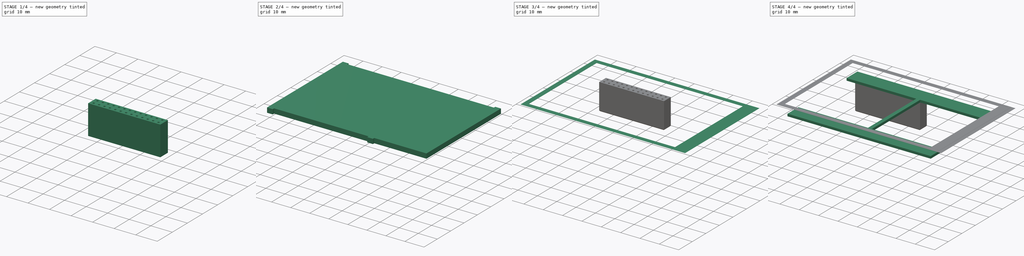
[diagram: build sequence overview — one tinted view per stage of 4, left to right]
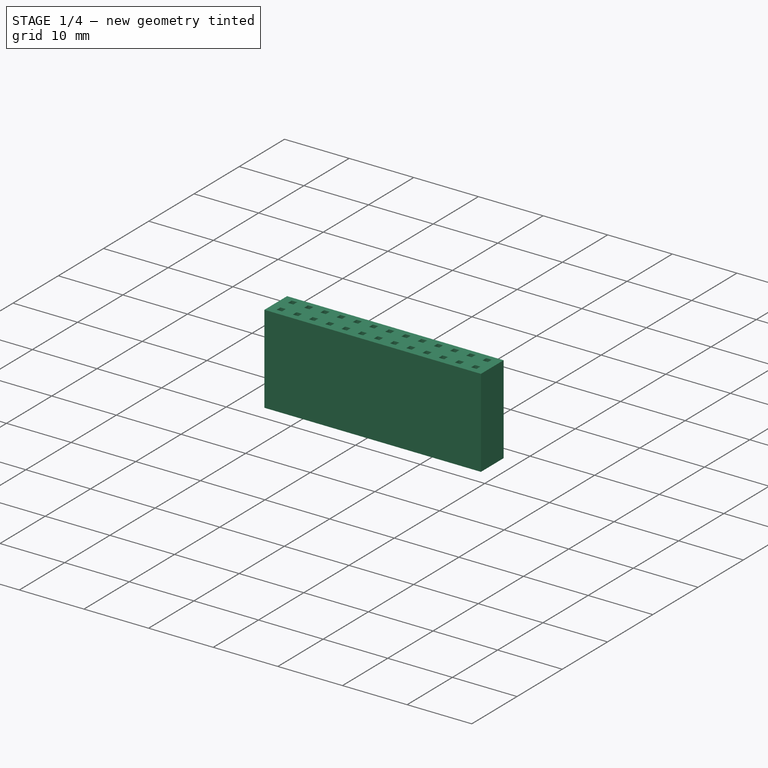
[diagram: stage 1 of 4 — iso view after this stage's code; geometry added in this stage tinted green]
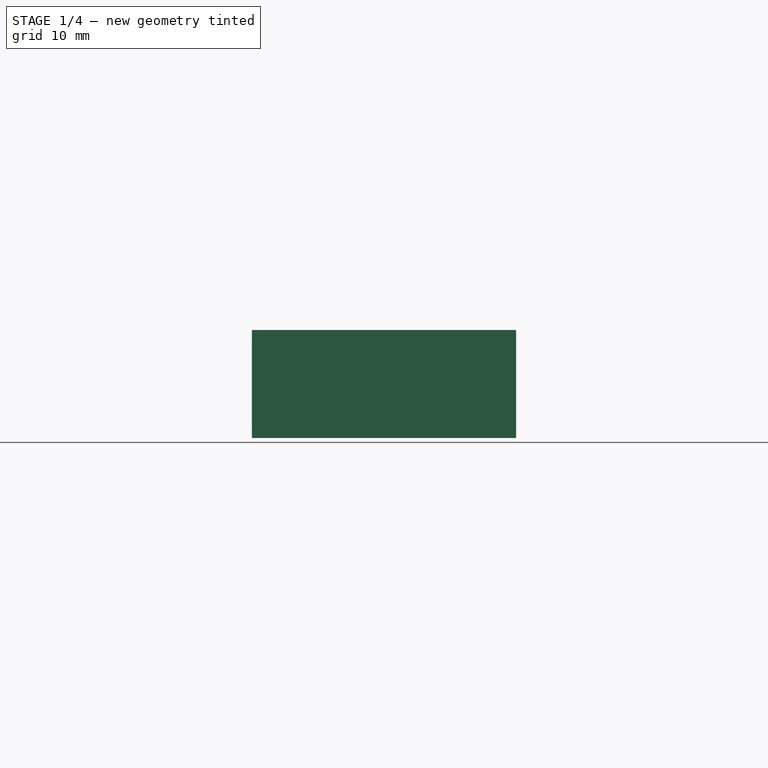
[diagram: stage 1 of 4 — front view after this stage's code; geometry added in this stage tinted green]
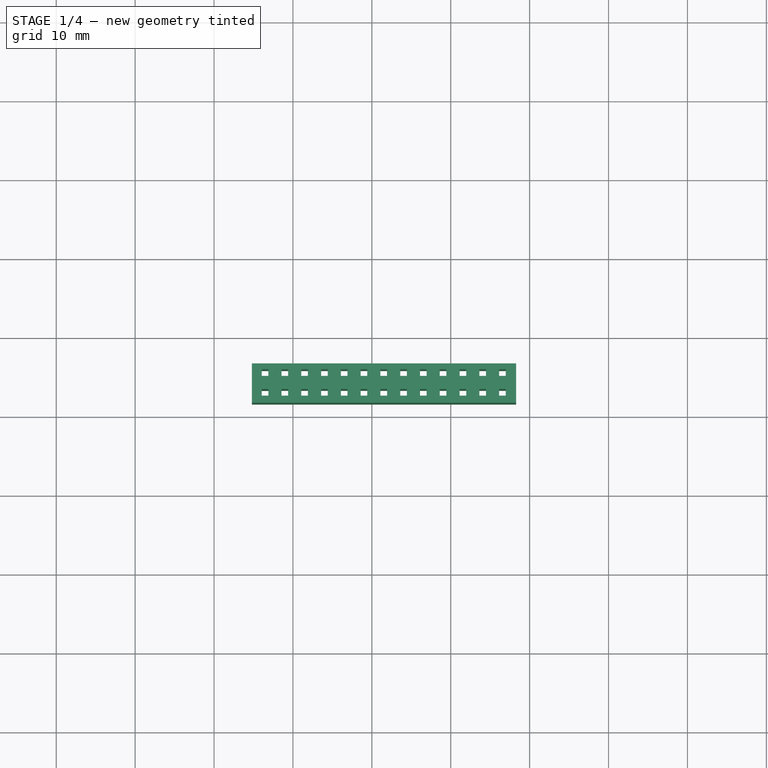
[diagram: stage 1 of 4 — top view after this stage's code; geometry added in this stage tinted green]
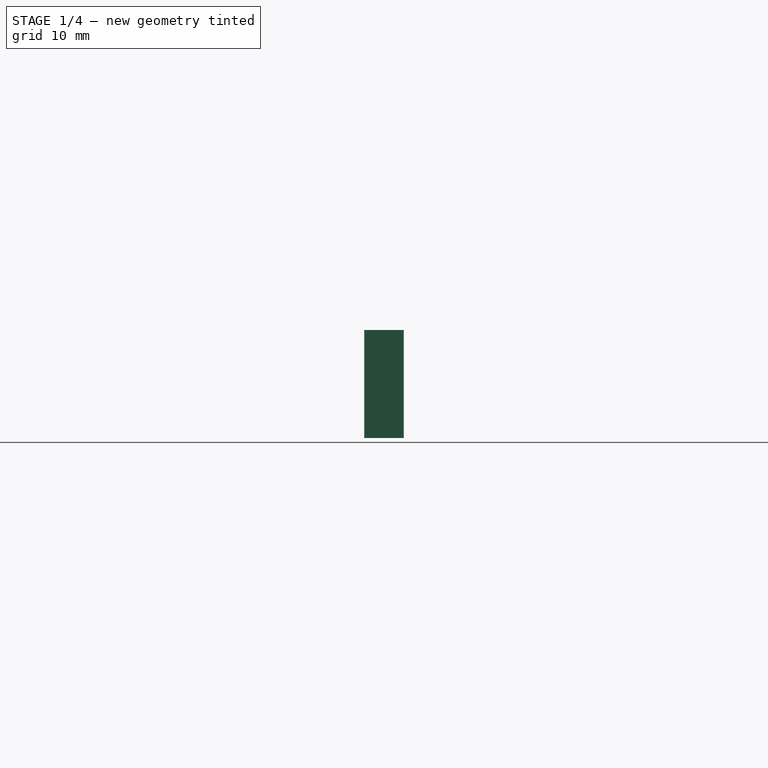
[diagram: stage 1 of 4 — right view after this stage's code; geometry added in this stage tinted green]
FCSTD DOCUMENT  (FreeCAD 0.20R26554 (Git))
Label: 3.5_RPi_tft_display_spi_480x320
Comment: Don´t forget to share your modifications with the community.
License: Creative Commons Attribution
LicenseURL: http://creativecommons.org/licenses/by/4.0/
objects: Sketcher::SketchObject×8, PartDesign::Pad×7, PartDesign::Body×7, PartDesign::ShapeBinder×6, PartDesign::Plane×1, PartDesign::Pocket×1, PartDesign::Chamfer×1
note: 40 computed .brp shape members not serialized (recipe doc carries the construction recipe); baked Part::Feature solids carry a one-line shape summary decoded from their .brp

FEATURE [Sketcher::SketchObject] Sketch
  FullyConstrained = true
  MapMode = 5
  Support = -> [XY_Plane]
  sketch-geometry (5):
    g0: LineSegment StartX=-42.71 StartY=27.8 StartZ=0 EndX=-42.71 EndY=-27.8 EndZ=0
    g1: LineSegment StartX=-42.71 StartY=-27.8 StartZ=0 EndX=42.71 EndY=-27.8 EndZ=0
    g2: LineSegment StartX=42.71 StartY=-27.8 StartZ=0 EndX=42.71 EndY=27.8 EndZ=0
    g3: LineSegment StartX=42.71 StartY=27.8 StartZ=0 EndX=-42.71 EndY=27.8 EndZ=0
    g4: GeomPoint X=0 Y=0 Z=0
  constraints (12):
    c: Coincident(g0,g1)
    c: Coincident(g1,g2)
    c: Coincident(g2,g3)
    c: Coincident(g3,g0)
    c: Horizontal(g1)
    c: Horizontal(g3)
    c: Vertical(g0)
    c: Vertical(g2)
    c: Symmetric(g1,g0,g4)
    c: Coincident(g4,g-1)
    c: DistanceX(g3,g3) = 85.42
    c: DistanceY(g2,g2) = 55.6
FEATURE [PartDesign::Pad] Pad
  Direction = (0,0,1)
  Length = 1.6
  Length2 = 100
  Profile = -> Sketch
  ReferenceAxis = -> Sketch [N_Axis]
  Type = 0
FEATURE [PartDesign::Body] Body005  label="BlackLayer"
  Group = -> [ShapeBinder003,Sketch006,Pad005]
  Origin = -> Origin005
  Tip = -> Pad005
FEATURE [PartDesign::ShapeBinder] ShapeBinder004
  Support = -> [Pad]
  TraceSupport = false
FEATURE [Sketcher::SketchObject] Sketch007
  ExternalGeometry = -> [ShapeBinder004]
  FullyConstrained = true
  MapMode = 5
  Placement = pos=(0,0,0) rot=(1,0,0;3.14159rad)
  Support = -> [ShapeBinder004]
  sketch-geometry (133):
    g0: LineSegment StartX=-35.21 StartY=-21.6 StartZ=0 EndX=-1.71 EndY=-21.6 EndZ=0
    g1: LineSegment StartX=-1.71 StartY=-21.6 StartZ=0 EndX=-1.71 EndY=-26.6 EndZ=0
    g2: LineSegment StartX=-1.71 StartY=-26.6 StartZ=0 EndX=-35.21 EndY=-26.6 EndZ=0
    g3: LineSegment StartX=-35.21 StartY=-26.6 StartZ=0 EndX=-35.21 EndY=-21.6 EndZ=0
    g4: LineSegment StartX=-33.96 StartY=-22.5 StartZ=0 EndX=-33.12 EndY=-22.5 EndZ=0
    g5: LineSegment StartX=-33.12 StartY=-22.5 StartZ=0 EndX=-33.12 EndY=-23.34 EndZ=0
    g6: LineSegment StartX=-33.12 StartY=-23.34 StartZ=0 EndX=-33.96 EndY=-23.34 EndZ=0
    g7: LineSegment StartX=-33.96 StartY=-23.34 StartZ=0 EndX=-33.96 EndY=-22.5 EndZ=0
    g8: LineSegment StartX=-31.4519 StartY=-22.5003 StartZ=0 EndX=-30.6119 EndY=-22.5003 EndZ=0
    g9: LineSegment StartX=-30.6119 StartY=-22.5003 StartZ=0 EndX=-30.6119 EndY=-23.3403 EndZ=0
    g10: LineSegment StartX=-30.6119 StartY=-23.3403 StartZ=0 EndX=-31.4519 EndY=-23.3403 EndZ=0
    g11: LineSegment StartX=-31.4519 StartY=-23.3403 StartZ=0 EndX=-31.4519 EndY=-22.5003 EndZ=0
    g12: LineSegment StartX=-33.96 StartY=-22.5 StartZ=0 EndX=-31.4519 EndY=-22.5003 EndZ=0
    g13: LineSegment StartX=-28.9439 StartY=-22.5006 StartZ=0 EndX=-28.1039 EndY=-22.5006 EndZ=0
    g14: LineSegment StartX=-28.1039 StartY=-22.5006 StartZ=0 EndX=-28.1039 EndY=-23.3406 EndZ=0
    g15: LineSegment StartX=-28.1039 StartY=-23.3406 StartZ=0 EndX=-28.9439 EndY=-23.3406 EndZ=0
    g16: LineSegment StartX=-28.9439 StartY=-23.3406 StartZ=0 EndX=-28.9439 EndY=-22.5006 EndZ=0
    g17: LineSegment StartX=-31.4519 StartY=-22.5003 StartZ=0 EndX=-28.9439 EndY=-22.5006 EndZ=0
    g18: LineSegment StartX=-26.4358 StartY=-22.501 StartZ=0 EndX=-25.5958 EndY=-22.501 EndZ=0
    g19: LineSegment StartX=-25.5958 StartY=-22.501 StartZ=0 EndX=-25.5958 EndY=-23.341 EndZ=0
    g20: LineSegment StartX=-25.5958 StartY=-23.341 StartZ=0 EndX=-26.4358 EndY=-23.341 EndZ=0
    g21: LineSegment StartX=-26.4358 StartY=-23.341 StartZ=0 EndX=-26.4358 EndY=-22.501 EndZ=0
    g22: LineSegment StartX=-28.9439 StartY=-22.5006 StartZ=0 EndX=-26.4358 EndY=-22.501 EndZ=0
    g23: LineSegment StartX=-23.9277 StartY=-22.5013 StartZ=0 EndX=-23.0877 EndY=-22.5013 EndZ=0
    g24: LineSegment StartX=-23.0877 StartY=-22.5013 StartZ=0 EndX=-23.0877 EndY=-23.3413 EndZ=0
    g25: LineSegment StartX=-23.0877 StartY=-23.3413 StartZ=0 EndX=-23.9277 EndY=-23.3413 EndZ=0
    g26: LineSegment StartX=-23.9277 StartY=-23.3413 StartZ=0 EndX=-23.9277 EndY=-22.5013 EndZ=0
    g27: LineSegment StartX=-26.4358 StartY=-22.501 StartZ=0 EndX=-23.9277 EndY=-22.5013 EndZ=0
    g28: LineSegment StartX=-21.4197 StartY=-22.5016 StartZ=0 EndX=-20.5797 EndY=-22.5016 EndZ=0
    g29: LineSegment StartX=-20.5797 StartY=-22.5016 StartZ=0 EndX=-20.5797 EndY=-23.3416 EndZ=0
    g30: LineSegment StartX=-20.5797 StartY=-23.3416 StartZ=0 EndX=-21.4197 EndY=-23.3416 EndZ=0
    g31: LineSegment StartX=-21.4197 StartY=-23.3416 StartZ=0 EndX=-21.4197 EndY=-22.5016 EndZ=0
    g32: LineSegment StartX=-23.9277 StartY=-22.5013 StartZ=0 EndX=-21.4197 EndY=-22.5016 EndZ=0
    g33: LineSegment StartX=-18.9116 StartY=-22.5019 StartZ=0 EndX=-18.0716 EndY=-22.5019 EndZ=0
    g34: LineSegment StartX=-18.0716 StartY=-22.5019 StartZ=0 EndX=-18.0716 EndY=-23.3419 EndZ=0
    g35: LineSegment StartX=-18.0716 StartY=-23.3419 StartZ=0 EndX=-18.9116 EndY=-23.3419 EndZ=0
    g36: LineSegment StartX=-18.9116 StartY=-23.3419 StartZ=0 EndX=-18.9116 EndY=-22.5019 EndZ=0
    g37: LineSegment StartX=-21.4197 StartY=-22.5016 StartZ=0 EndX=-18.9116 EndY=-22.5019 EndZ=0
    g38: LineSegment StartX=-16.4035 StartY=-22.5022 StartZ=0 EndX=-15.5635 EndY=-22.5022 EndZ=0
    g39: LineSegment StartX=-15.5635 StartY=-22.5022 StartZ=0 EndX=-15.5635 EndY=-23.3422 EndZ=0
    g40: LineSegment StartX=-15.5635 StartY=-23.3422 StartZ=0 EndX=-16.4035 EndY=-23.3422 EndZ=0
    g41: LineSegment StartX=-16.4035 StartY=-23.3422 StartZ=0 EndX=-16.4035 EndY=-22.5022 EndZ=0
    g42: LineSegment StartX=-18.9116 StartY=-22.5019 StartZ=0 EndX=-16.4035 EndY=-22.5022 EndZ=0
    g43: LineSegment StartX=-13.8955 StartY=-22.5026 StartZ=0 EndX=-13.0555 EndY=-22.5026 EndZ=0
    g44: LineSegment StartX=-13.0555 StartY=-22.5026 StartZ=0 EndX=-13.0555 EndY=-23.3426 EndZ=0
    g45: LineSegment StartX=-13.0555 StartY=-23.3426 StartZ=0 EndX=-13.8955 EndY=-23.3426 EndZ=0
    g46: LineSegment StartX=-13.8955 StartY=-23.3426 StartZ=0 EndX=-13.8955 EndY=-22.5026 EndZ=0
    g47: LineSegment StartX=-16.4035 StartY=-22.5022 StartZ=0 EndX=-13.8955 EndY=-22.5026 EndZ=0
    g48: LineSegment StartX=-11.3874 StartY=-22.5029 StartZ=0 EndX=-10.5474 EndY=-22.5029 EndZ=0
    g49: LineSegment StartX=-10.5474 StartY=-22.5029 StartZ=0 EndX=-10.5474 EndY=-23.3429 EndZ=0
    g50: LineSegment StartX=-10.5474 StartY=-23.3429 StartZ=0 EndX=-11.3874 EndY=-23.3429 EndZ=0
    g51: LineSegment StartX=-11.3874 StartY=-23.3429 StartZ=0 EndX=-11.3874 EndY=-22.5029 EndZ=0
    g52: LineSegment StartX=-13.8955 StartY=-22.5026 StartZ=0 EndX=-11.3874 EndY=-22.5029 EndZ=0
    g53: LineSegment StartX=-8.87935 StartY=-22.5032 StartZ=0 EndX=-8.03935 EndY=-22.5032 EndZ=0
    g54: LineSegment StartX=-8.03935 StartY=-22.5032 StartZ=0 EndX=-8.03935 EndY=-23.3432 EndZ=0
    g55: LineSegment StartX=-8.03935 StartY=-23.3432 StartZ=0 EndX=-8.87935 EndY=-23.3432 EndZ=0
    g56: LineSegment StartX=-8.87935 StartY=-23.3432 StartZ=0 EndX=-8.87935 EndY=-22.5032 EndZ=0
    g57: LineSegment StartX=-11.3874 StartY=-22.5029 StartZ=0 EndX=-8.87935 EndY=-22.5032 EndZ=0
    g58: LineSegment StartX=-6.37128 StartY=-22.5035 StartZ=0 EndX=-5.53128 EndY=-22.5035 EndZ=0
    g59: LineSegment StartX=-5.53128 StartY=-22.5035 StartZ=0 EndX=-5.53128 EndY=-23.3435 EndZ=0
    g60: LineSegment StartX=-5.53128 StartY=-23.3435 StartZ=0 EndX=-6.37128 EndY=-23.3435 EndZ=0
    g61: LineSegment StartX=-6.37128 StartY=-23.3435 StartZ=0 EndX=-6.37128 EndY=-22.5035 EndZ=0
    g62: LineSegment StartX=-8.87935 StartY=-22.5032 StartZ=0 EndX=-6.37128 EndY=-22.5035 EndZ=0
    g63: LineSegment StartX=-3.86322 StartY=-22.5038 StartZ=0 EndX=-3.02322 EndY=-22.5038 EndZ=0
    g64: LineSegment StartX=-3.02322 StartY=-22.5038 StartZ=0 EndX=-3.02322 EndY=-23.3438 EndZ=0
    g65: LineSegment StartX=-3.02322 StartY=-23.3438 StartZ=0 EndX=-3.86322 EndY=-23.3438 EndZ=0
    g66: LineSegment StartX=-3.86322 StartY=-23.3438 StartZ=0 EndX=-3.86322 EndY=-22.5038 EndZ=0
    g67: LineSegment StartX=-6.37128 StartY=-22.5035 StartZ=0 EndX=-3.86322 EndY=-22.5038 EndZ=0
    g68: LineSegment StartX=-33.9603 StartY=-25.0081 StartZ=0 EndX=-33.1203 EndY=-25.0081 EndZ=0
    g69: LineSegment StartX=-33.1203 StartY=-25.0081 StartZ=0 EndX=-33.1203 EndY=-25.8481 EndZ=0
    g70: LineSegment StartX=-33.1203 StartY=-25.8481 StartZ=0 EndX=-33.9603 EndY=-25.8481 EndZ=0
    g71: LineSegment StartX=-33.9603 StartY=-25.8481 StartZ=0 EndX=-33.9603 EndY=-25.0081 EndZ=0
    g72: LineSegment StartX=-33.96 StartY=-22.5 StartZ=0 EndX=-33.9603 EndY=-25.0081 EndZ=0
    g73: LineSegment StartX=-31.4523 StartY=-25.0084 StartZ=0 EndX=-30.6123 EndY=-25.0084 EndZ=0
    g74: LineSegment StartX=-30.6123 StartY=-25.0084 StartZ=0 EndX=-30.6123 EndY=-25.8484 EndZ=0
    g75: LineSegment StartX=-30.6123 StartY=-25.8484 StartZ=0 EndX=-31.4523 EndY=-25.8484 EndZ=0
    g76: LineSegment StartX=-31.4523 StartY=-25.8484 StartZ=0 EndX=-31.4523 EndY=-25.0084 EndZ=0
    g77: LineSegment StartX=-33.9603 StartY=-25.0081 StartZ=0 EndX=-31.4523 EndY=-25.0084 EndZ=0
    g78: LineSegment StartX=-28.9442 StartY=-25.0087 StartZ=0 EndX=-28.1042 EndY=-25.0087 EndZ=0
    g79: LineSegment StartX=-28.1042 StartY=-25.0087 StartZ=0 EndX=-28.1042 EndY=-25.8487 EndZ=0
    g80: LineSegment StartX=-28.1042 StartY=-25.8487 StartZ=0 EndX=-28.9442 EndY=-25.8487 EndZ=0
    g81: LineSegment StartX=-28.9442 StartY=-25.8487 StartZ=0 EndX=-28.9442 EndY=-25.0087 EndZ=0
    g82: LineSegment StartX=-31.4523 StartY=-25.0084 StartZ=0 EndX=-28.9442 EndY=-25.0087 EndZ=0
    g83: LineSegment StartX=-26.4361 StartY=-25.009 StartZ=0 EndX=-25.5961 EndY=-25.009 EndZ=0
    g84: LineSegment StartX=-25.5961 StartY=-25.009 StartZ=0 EndX=-25.5961 EndY=-25.849 EndZ=0
    g85: LineSegment StartX=-25.5961 StartY=-25.849 StartZ=0 EndX=-26.4361 EndY=-25.849 EndZ=0
    g86: LineSegment StartX=-26.4361 StartY=-25.849 StartZ=0 EndX=-26.4361 EndY=-25.009 EndZ=0
    g87: LineSegment StartX=-28.9442 StartY=-25.0087 StartZ=0 EndX=-26.4361 EndY=-25.009 EndZ=0
    g88: LineSegment StartX=-23.9281 StartY=-25.0093 StartZ=0 EndX=-23.0881 EndY=-25.0093 EndZ=0
    g89: LineSegment StartX=-23.0881 StartY=-25.0093 StartZ=0 EndX=-23.0881 EndY=-25.8493 EndZ=0
    g90: LineSegment StartX=-23.0881 StartY=-25.8493 StartZ=0 EndX=-23.9281 EndY=-25.8493 EndZ=0
    g91: LineSegment StartX=-23.9281 StartY=-25.8493 StartZ=0 EndX=-23.9281 EndY=-25.0093 EndZ=0
    g92: LineSegment StartX=-26.4361 StartY=-25.009 StartZ=0 EndX=-23.9281 EndY=-25.0093 EndZ=0
    g93: LineSegment StartX=-21.42 StartY=-25.0097 StartZ=0 EndX=-20.58 EndY=-25.0097 EndZ=0
    g94: LineSegment StartX=-20.58 StartY=-25.0097 StartZ=0 EndX=-20.58 EndY=-25.8497 EndZ=0
    g95: LineSegment StartX=-20.58 StartY=-25.8497 StartZ=0 EndX=-21.42 EndY=-25.8497 EndZ=0
    g96: LineSegment StartX=-21.42 StartY=-25.8497 StartZ=0 EndX=-21.42 EndY=-25.0097 EndZ=0
    g97: LineSegment StartX=-23.9281 StartY=-25.0093 StartZ=0 EndX=-21.42 EndY=-25.0097 EndZ=0
    g98: LineSegment StartX=-18.9119 StartY=-25.01 StartZ=0 EndX=-18.0719 EndY=-25.01 EndZ=0
    g99: LineSegment StartX=-18.0719 StartY=-25.01 StartZ=0 EndX=-18.0719 EndY=-25.85 EndZ=0
    g100: LineSegment StartX=-18.0719 StartY=-25.85 StartZ=0 EndX=-18.9119 EndY=-25.85 EndZ=0
    g101: LineSegment StartX=-18.9119 StartY=-25.85 StartZ=0 EndX=-18.9119 EndY=-25.01 EndZ=0
    g102: LineSegment StartX=-21.42 StartY=-25.0097 StartZ=0 EndX=-18.9119 EndY=-25.01 EndZ=0
    g103: LineSegment StartX=-16.4039 StartY=-25.0103 StartZ=0 EndX=-15.5639 EndY=-25.0103 EndZ=0
    g104: LineSegment StartX=-15.5639 StartY=-25.0103 StartZ=0 EndX=-15.5639 EndY=-25.8503 EndZ=0
    g105: LineSegment StartX=-15.5639 StartY=-25.8503 StartZ=0 EndX=-16.4039 EndY=-25.8503 EndZ=0
    g106: LineSegment StartX=-16.4039 StartY=-25.8503 StartZ=0 EndX=-16.4039 EndY=-25.0103 EndZ=0
    g107: LineSegment StartX=-18.9119 StartY=-25.01 StartZ=0 EndX=-16.4039 EndY=-25.0103 EndZ=0
    g108: LineSegment StartX=-13.8958 StartY=-25.0106 StartZ=0 EndX=-13.0558 EndY=-25.0106 EndZ=0
    g109: LineSegment StartX=-13.0558 StartY=-25.0106 StartZ=0 EndX=-13.0558 EndY=-25.8506 EndZ=0
    g110: LineSegment StartX=-13.0558 StartY=-25.8506 StartZ=0 EndX=-13.8958 EndY=-25.8506 EndZ=0
    g111: LineSegment StartX=-13.8958 StartY=-25.8506 StartZ=0 EndX=-13.8958 EndY=-25.0106 EndZ=0
    g112: LineSegment StartX=-16.4039 StartY=-25.0103 StartZ=0 EndX=-13.8958 EndY=-25.0106 EndZ=0
    g113: LineSegment StartX=-11.3877 StartY=-25.0109 StartZ=0 EndX=-10.5477 EndY=-25.0109 EndZ=0
    g114: LineSegment StartX=-10.5477 StartY=-25.0109 StartZ=0 EndX=-10.5477 EndY=-25.8509 EndZ=0
    g115: LineSegment StartX=-10.5477 StartY=-25.8509 StartZ=0 EndX=-11.3877 EndY=-25.8509 EndZ=0
    g116: LineSegment StartX=-11.3877 StartY=-25.8509 StartZ=0 EndX=-11.3877 EndY=-25.0109 EndZ=0
    g117: LineSegment StartX=-13.8958 StartY=-25.0106 StartZ=0 EndX=-11.3877 EndY=-25.0109 EndZ=0
    g118: LineSegment StartX=-8.87967 StartY=-25.0113 StartZ=0 EndX=-8.03967 EndY=-25.0113 EndZ=0
    g119: LineSegment StartX=-8.03967 StartY=-25.0113 StartZ=0 EndX=-8.03967 EndY=-25.8513 EndZ=0
    g120: LineSegment StartX=-8.03967 StartY=-25.8513 StartZ=0 EndX=-8.87967 EndY=-25.8513 EndZ=0
    g121: LineSegment StartX=-8.87967 StartY=-25.8513 StartZ=0 EndX=-8.87967 EndY=-25.0113 EndZ=0
    g122: LineSegment StartX=-11.3877 StartY=-25.0109 StartZ=0 EndX=-8.87967 EndY=-25.0113 EndZ=0
    g123: LineSegment StartX=-6.3716 StartY=-25.0116 StartZ=0 EndX=-5.5316 EndY=-25.0116 EndZ=0
    g124: LineSegment StartX=-5.5316 StartY=-25.0116 StartZ=0 EndX=-5.5316 EndY=-25.8516 EndZ=0
    g125: LineSegment StartX=-5.5316 StartY=-25.8516 StartZ=0 EndX=-6.3716 EndY=-25.8516 EndZ=0
    g126: LineSegment StartX=-6.3716 StartY=-25.8516 StartZ=0 EndX=-6.3716 EndY=-25.0116 EndZ=0
    g127: LineSegment StartX=-8.87967 StartY=-25.0113 StartZ=0 EndX=-6.3716 EndY=-25.0116 EndZ=0
    g128: LineSegment StartX=-3.86354 StartY=-25.0119 StartZ=0 EndX=-3.02354 EndY=-25.0119 EndZ=0
    g129: LineSegment StartX=-3.02354 StartY=-25.0119 StartZ=0 EndX=-3.02354 EndY=-25.8519 EndZ=0
    g130: LineSegment StartX=-3.02354 StartY=-25.8519 StartZ=0 EndX=-3.86354 EndY=-25.8519 EndZ=0
    g131: LineSegment StartX=-3.86354 StartY=-25.8519 StartZ=0 EndX=-3.86354 EndY=-25.0119 EndZ=0
    g132: LineSegment StartX=-6.3716 StartY=-25.0116 StartZ=0 EndX=-3.86354 EndY=-25.0119 EndZ=0
  constraints (374):
    c: Coincident(g0,g1)
    c: Coincident(g1,g2)
    c: Coincident(g2,g3)
    c: Coincident(g3,g0)
    c: Horizontal(g0)
    c: Horizontal(g2)
    c: Vertical(g1)
    c: Vertical(g3)
    c: DistanceX(g0,g0) = 33.5
    c: DistanceY(g1,g1) = 5
    c: DistanceX(g-4,g2) = 7.5
    c: DistanceY(g-4,g2) = 1.2
    c: Coincident(g4,g5)
    c: Coincident(g5,g6)
    c: Coincident(g6,g7)
    c: Coincident(g7,g4)
    c: Horizontal(g4)
    c: Horizontal(g6)
    c: Vertical(g5)
    c: Vertical(g7)
    c: Equal(g5,g4)
    c: DistanceX(g4,g4) = 0.84
    c: DistanceX(g0,g4) = 1.25
    c: DistanceY(g4,g0) = 0.9
    c: Coincident(g8,g9)
    c: Coincident(g9,g10)
    c: Coincident(g10,g11)
    c: Coincident(g11,g8)
    c: Horizontal(g8)
    c: Horizontal(g10)
    c: Vertical(g9)
    c: Vertical(g11)
    c: Equal(g9,g8)
    c: DistanceX(g8,g8) = 0.84
    c: Coincident(g4,g12)
    c: Coincident(g8,g12)
    c: Distance(g12) = 2.50807
    c: Angle(g12) = -0.00012719
    c: Coincident(g13,g14)
    c: Coincident(g14,g15)
    c: Coincident(g15,g16)
    c: Coincident(g16,g13)
    c: Horizontal(g13)
    c: Horizontal(g15)
    c: Vertical(g14)
    c: Vertical(g16)
    c: Equal(g14,g13)
    c: DistanceX(g13,g13) = 0.84
    c: Coincident(g8,g17)
    c: Coincident(g13,g17)
    c: Equal(g12,g17)
    c: Parallel(g17,g12)
    c: Coincident(g18,g19)
    c: Coincident(g19,g20)
    c: Coincident(g20,g21)
    c: Coincident(g21,g18)
    c: Horizontal(g18)
    c: Horizontal(g20)
    c: Vertical(g19)
    c: Vertical(g21)
    c: Equal(g19,g18)
    c: DistanceX(g18,g18) = 0.84
    c: Coincident(g13,g22)
    c: Coincident(g18,g22)
    c: Equal(g12,g22)
    c: Parallel(g22,g12)
    c: Coincident(g23,g24)
    c: Coincident(g24,g25)
    c: Coincident(g25,g26)
    c: Coincident(g26,g23)
    c: Horizontal(g23)
    c: Horizontal(g25)
    c: Vertical(g24)
    c: Vertical(g26)
    c: Equal(g24,g23)
    c: DistanceX(g23,g23) = 0.84
    c: Coincident(g18,g27)
    c: Coincident(g23,g27)
    c: Equal(g12,g27)
    c: Parallel(g27,g12)
    c: Coincident(g28,g29)
    c: Coincident(g29,g30)
    c: Coincident(g30,g31)
    c: Coincident(g31,g28)
    c: Horizontal(g28)
    c: Horizontal(g30)
    c: Vertical(g29)
    c: Vertical(g31)
    c: Equal(g29,g28)
    c: DistanceX(g28,g28) = 0.84
    c: Coincident(g23,g32)
    c: Coincident(g28,g32)
    c: Equal(g12,g32)
    c: Parallel(g32,g12)
    c: Coincident(g33,g34)
    c: Coincident(g34,g35)
    c: Coincident(g35,g36)
    c: Coincident(g36,g33)
    c: Horizontal(g33)
    c: Horizontal(g35)
    c: Vertical(g34)
    c: Vertical(g36)
    c: Equal(g34,g33)
    c: DistanceX(g33,g33) = 0.84
    c: Coincident(g28,g37)
    c: Coincident(g33,g37)
    c: Equal(g12,g37)
    c: Parallel(g37,g12)
    c: Coincident(g38,g39)
    c: Coincident(g39,g40)
    c: Coincident(g40,g41)
    c: Coincident(g41,g38)
    c: Horizontal(g38)
    c: Horizontal(g40)
    c: Vertical(g39)
    c: Vertical(g41)
    c: Equal(g39,g38)
    c: DistanceX(g38,g38) = 0.84
    c: Coincident(g33,g42)
    c: Coincident(g38,g42)
    c: Equal(g12,g42)
    c: Parallel(g42,g12)
    c: Coincident(g43,g44)
    c: Coincident(g44,g45)
    c: Coincident(g45,g46)
    c: Coincident(g46,g43)
    c: Horizontal(g43)
    c: Horizontal(g45)
    c: Vertical(g44)
    c: Vertical(g46)
    c: Equal(g44,g43)
    c: DistanceX(g43,g43) = 0.84
    c: Coincident(g38,g47)
    c: Coincident(g43,g47)
    c: Equal(g12,g47)
    c: Parallel(g47,g12)
    c: Coincident(g48,g49)
    c: Coincident(g49,g50)
    c: Coincident(g50,g51)
    c: Coincident(g51,g48)
    c: Horizontal(g48)
    c: Horizontal(g50)
    c: Vertical(g49)
    c: Vertical(g51)
    c: Equal(g49,g48)
    c: DistanceX(g48,g48) = 0.84
    c: Coincident(g43,g52)
    c: Coincident(g48,g52)
    c: Equal(g12,g52)
    c: Parallel(g52,g12)
    c: Coincident(g53,g54)
    c: Coincident(g54,g55)
    c: Coincident(g55,g56)
    c: Coincident(g56,g53)
    c: Horizontal(g53)
    c: Horizontal(g55)
    c: Vertical(g54)
    c: Vertical(g56)
    c: Equal(g54,g53)
    c: DistanceX(g53,g53) = 0.84
    c: Coincident(g48,g57)
    c: Coincident(g53,g57)
    c: Equal(g12,g57)
    c: Parallel(g57,g12)
    c: Coincident(g58,g59)
    c: Coincident(g59,g60)
    c: Coincident(g60,g61)
    c: Coincident(g61,g58)
    c: Horizontal(g58)
    c: Horizontal(g60)
    c: Vertical(g59)
    c: Vertical(g61)
    c: Equal(g59,g58)
    c: DistanceX(g58,g58) = 0.84
    c: Coincident(g53,g62)
    c: Coincident(g58,g62)
    c: Equal(g12,g62)
    c: Parallel(g62,g12)
    c: Coincident(g63,g64)
    c: Coincident(g64,g65)
    c: Coincident(g65,g66)
    c: Coincident(g66,g63)
    c: Horizontal(g63)
    c: Horizontal(g65)
    c: Vertical(g64)
    c: Vertical(g66)
    c: Equal(g64,g63)
    c: DistanceX(g63,g63) = 0.84
    c: Coincident(g58,g67)
    c: Coincident(g63,g67)
    c: Equal(g12,g67)
    c: Parallel(g67,g12)
    c: Coincident(g68,g69)
    c: Coincident(g69,g70)
    c: Coincident(g70,g71)
    c: Coincident(g71,g68)
    c: Horizontal(g68)
    c: Horizontal(g70)
    c: Vertical(g69)
    c: Vertical(g71)
    c: Equal(g69,g68)
    c: DistanceX(g68,g68) = 0.84
    c: Coincident(g4,g72)
    c: Coincident(g68,g72)
    c: Equal(g72,g12)
    c: Perpendicular(g72,g12)
    c: Coincident(g73,g74)
    c: Coincident(g74,g75)
    c: Coincident(g75,g76)
    c: Coincident(g76,g73)
    c: Horizontal(g73)
    c: Horizontal(g75)
    c: Vertical(g74)
    c: Vertical(g76)
    c: Equal(g74,g73)
    c: DistanceX(g73,g73) = 0.84
    c: Coincident(g68,g77)
    c: Coincident(g73,g77)
    c: Equal(g12,g77)
    c: Parallel(g77,g12)
    c: Coincident(g78,g79)
    c: Coincident(g79,g80)
    c: Coincident(g80,g81)
    c: Coincident(g81,g78)
    c: Horizontal(g78)
    c: Horizontal(g80)
    c: Vertical(g79)
    c: Vertical(g81)
    c: Equal(g79,g78)
    c: DistanceX(g78,g78) = 0.84
    c: Coincident(g73,g82)
    c: Coincident(g78,g82)
    c: Equal(g12,g82)
    c: Parallel(g82,g12)
    c: Coincident(g83,g84)
    c: Coincident(g84,g85)
    c: Coincident(g85,g86)
    c: Coincident(g86,g83)
    c: Horizontal(g83)
    c: Horizontal(g85)
    c: Vertical(g84)
    c: Vertical(g86)
    c: Equal(g84,g83)
    c: DistanceX(g83,g83) = 0.84
    c: Coincident(g78,g87)
    c: Coincident(g83,g87)
    c: Equal(g12,g87)
    c: Parallel(g87,g12)
    c: Coincident(g88,g89)
    c: Coincident(g89,g90)
    c: Coincident(g90,g91)
    c: Coincident(g91,g88)
    c: Horizontal(g88)
    c: Horizontal(g90)
    c: Vertical(g89)
    c: Vertical(g91)
    c: Equal(g89,g88)
    c: DistanceX(g88,g88) = 0.84
    c: Coincident(g83,g92)
    c: Coincident(g88,g92)
    c: Equal(g12,g92)
    c: Parallel(g92,g12)
    c: Coincident(g93,g94)
    c: Coincident(g94,g95)
    c: Coincident(g95,g96)
    c: Coincident(g96,g93)
    c: Horizontal(g93)
    c: Horizontal(g95)
    c: Vertical(g94)
    c: Vertical(g96)
    c: Equal(g94,g93)
    c: DistanceX(g93,g93) = 0.84
    c: Coincident(g88,g97)
    c: Coincident(g93,g97)
    c: Equal(g12,g97)
    c: Parallel(g97,g12)
    c: Coincident(g98,g99)
    c: Coincident(g99,g100)
    c: Coincident(g100,g101)
    c: Coincident(g101,g98)
    c: Horizontal(g98)
    c: Horizontal(g100)
    c: Vertical(g99)
    c: Vertical(g101)
    c: Equal(g99,g98)
    c: DistanceX(g98,g98) = 0.84
    c: Coincident(g93,g102)
    c: Coincident(g98,g102)
    c: Equal(g12,g102)
    c: Parallel(g102,g12)
    c: Coincident(g103,g104)
    c: Coincident(g104,g105)
    c: Coincident(g105,g106)
    c: Coincident(g106,g103)
    c: Horizontal(g103)
    c: Horizontal(g105)
    c: Vertical(g104)
    c: Vertical(g106)
    c: Equal(g104,g103)
    c: DistanceX(g103,g103) = 0.84
    c: Coincident(g98,g107)
    c: Coincident(g103,g107)
    c: Equal(g12,g107)
    c: Parallel(g107,g12)
    c: Coincident(g108,g109)
    c: Coincident(g109,g110)
    c: Coincident(g110,g111)
    c: Coincident(g111,g108)
    c: Horizontal(g108)
    c: Horizontal(g110)
    c: Vertical(g109)
    c: Vertical(g111)
    c: Equal(g109,g108)
    c: DistanceX(g108,g108) = 0.84
    c: Coincident(g103,g112)
    c: Coincident(g108,g112)
    c: Equal(g12,g112)
    c: Parallel(g112,g12)
    c: Coincident(g113,g114)
    c: Coincident(g114,g115)
    c: Coincident(g115,g116)
    c: Coincident(g116,g113)
    c: Horizontal(g113)
    c: Horizontal(g115)
    c: Vertical(g114)
    c: Vertical(g116)
    c: Equal(g114,g113)
    c: DistanceX(g113,g113) = 0.84
    c: Coincident(g108,g117)
    c: Coincident(g113,g117)
    c: Equal(g12,g117)
    c: Parallel(g117,g12)
    c: Coincident(g118,g119)
    c: Coincident(g119,g120)
    c: Coincident(g120,g121)
    c: Coincident(g121,g118)
    c: Horizontal(g118)
    c: Horizontal(g120)
    c: Vertical(g119)
    c: Vertical(g121)
    c: Equal(g119,g118)
    c: DistanceX(g118,g118) = 0.84
    c: Coincident(g113,g122)
    c: Coincident(g118,g122)
    c: Equal(g12,g122)
    c: Parallel(g122,g12)
    c: Coincident(g123,g124)
    c: Coincident(g124,g125)
    c: Coincident(g125,g126)
    c: Coincident(g126,g123)
    c: Horizontal(g123)
    c: Horizontal(g125)
    c: Vertical(g124)
    c: Vertical(g126)
    c: Equal(g124,g123)
    c: DistanceX(g123,g123) = 0.84
    c: Coincident(g118,g127)
    c: Coincident(g123,g127)
    c: Equal(g12,g127)
    c: Parallel(g127,g12)
    c: Coincident(g128,g129)
    c: Coincident(g129,g130)
    c: Coincident(g130,g131)
    c: Coincident(g131,g128)
    c: Horizontal(g128)
    c: Horizontal(g130)
    c: Vertical(g129)
    c: Vertical(g131)
    c: Equal(g129,g128)
    c: DistanceX(g128,g128) = 0.84
    c: Coincident(g123,g132)
    c: Coincident(g128,g132)
    c: Equal(g12,g132)
    c: Parallel(g132,g12)
FEATURE [PartDesign::Pad] Pad006
  Direction = (0,0,-1)
  Length = 13.7
  Length2 = 100
  Profile = -> Sketch007
  ReferenceAxis = -> Sketch007 [N_Axis]
  Type = 0
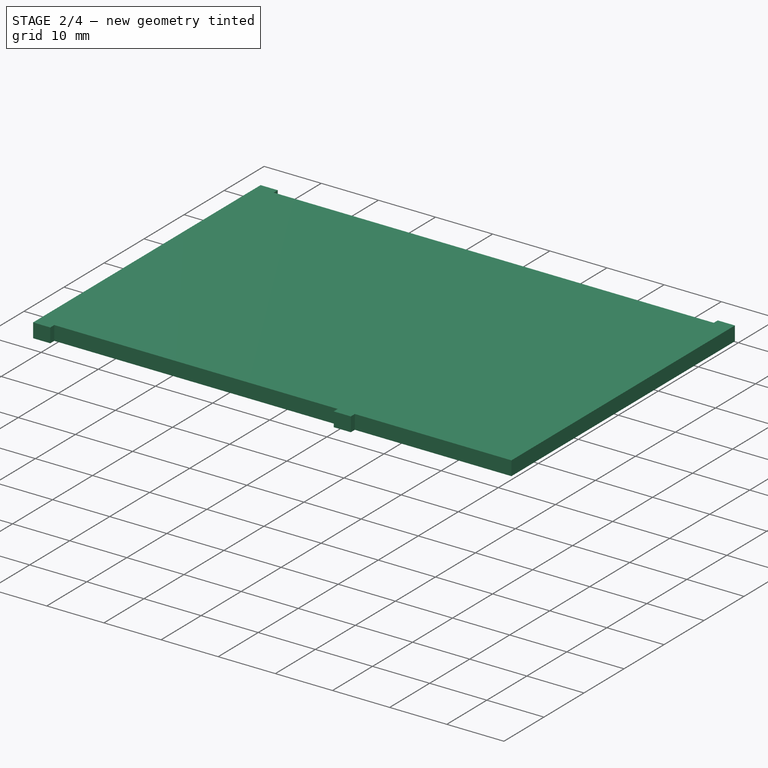
[diagram: stage 2 of 4 — iso view after this stage's code; geometry added in this stage tinted green]
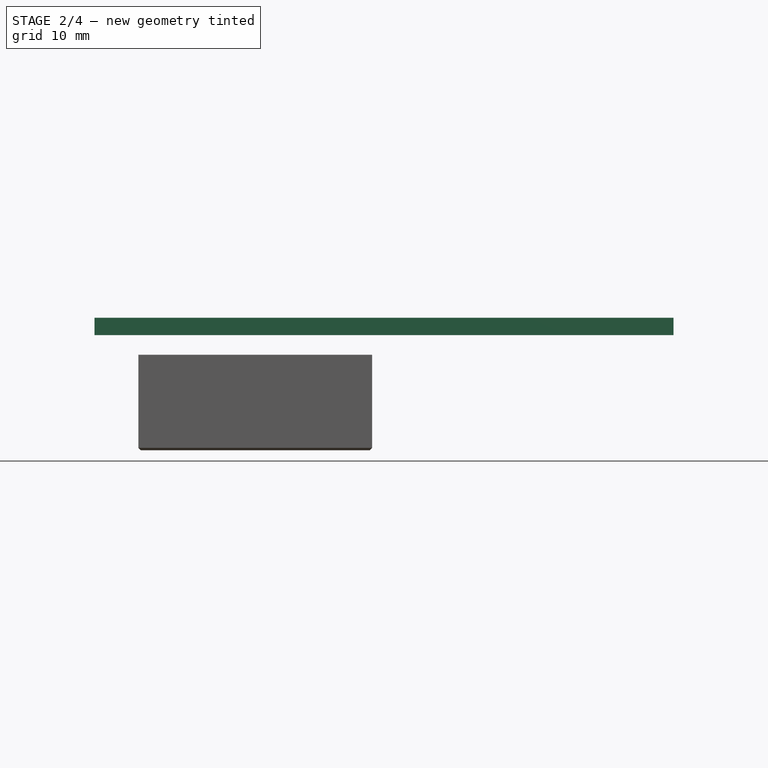
[diagram: stage 2 of 4 — front view after this stage's code; geometry added in this stage tinted green]
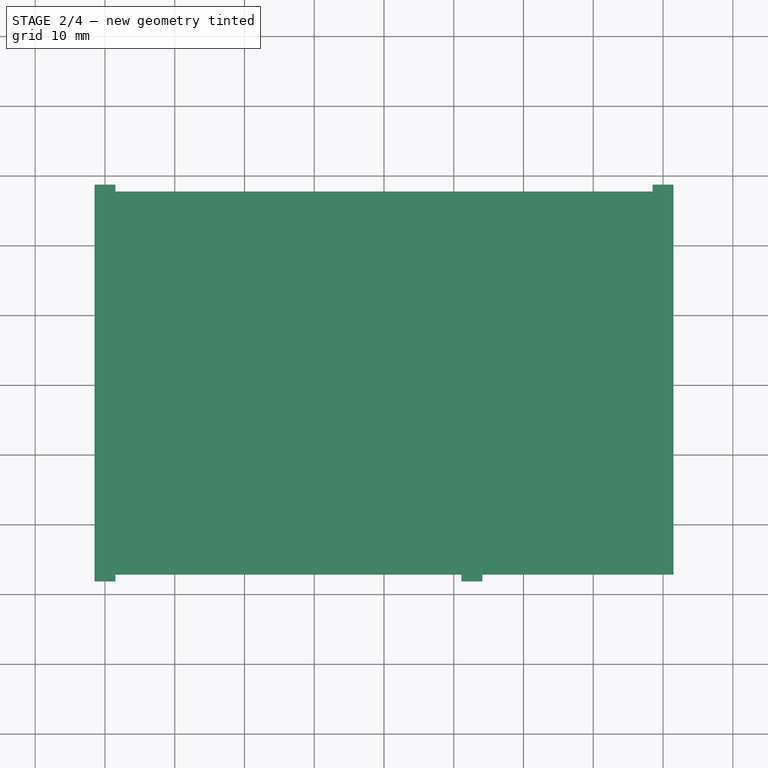
[diagram: stage 2 of 4 — top view after this stage's code; geometry added in this stage tinted green]
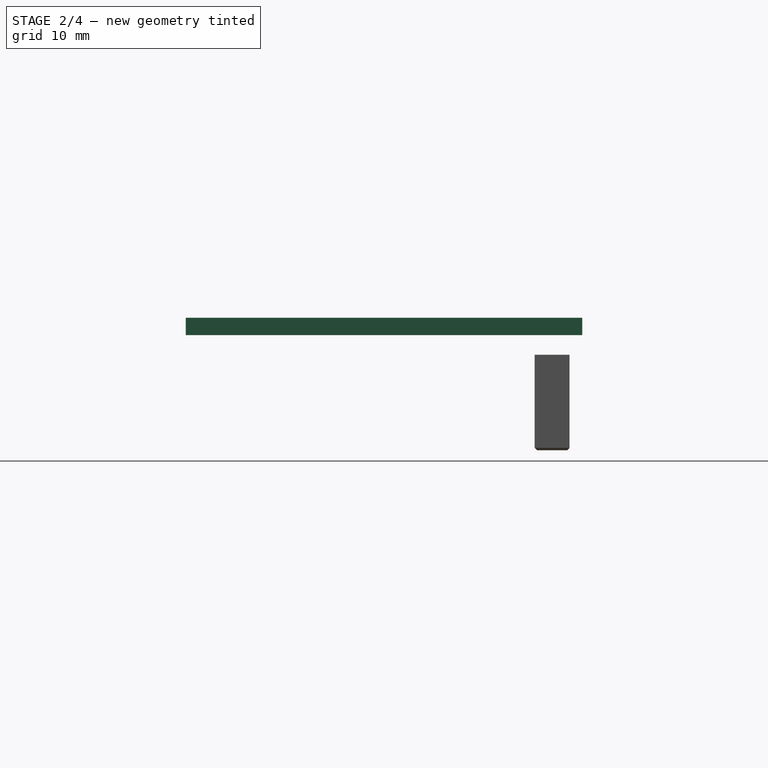
[diagram: stage 2 of 4 — right view after this stage's code; geometry added in this stage tinted green]
FEATURE [PartDesign::Body] Body001  label="AdhesiveSponge"
  Group = -> [ShapeBinder,Sketch001,Pad001]
  Origin = -> Origin001
  Tip = -> Pad001
FEATURE [PartDesign::ShapeBinder] CopyPad001
  Placement = pos=(0,0,1.2) rot=(0,0,1;0rad)
  TraceSupport = false
FEATURE [PartDesign::Plane] DatumPlane
  Length = 96.7383
  MapMode = 5
  Placement = pos=(0,0,2.8) rot=(0,0,1;0rad)
  ResizeMode = 0
  Support = -> [CopyPad001]
  Width = 70.5883
FEATURE [Sketcher::SketchObject] Sketch002
  FullyConstrained = true
  MapMode = 5
  Placement = pos=(0,0,2.8) rot=(0,0,1;0rad)
  Support = -> [DatumPlane]
  sketch-geometry (18):
    g0: LineSegment StartX=-41.5 StartY=27.425 StartZ=0 EndX=-41.5 EndY=-27.425 EndZ=0
    g1: LineSegment StartX=41.5 StartY=-27.425 StartZ=0 EndX=41.5 EndY=27.425 EndZ=0
    g2: LineSegment StartX=38.5 StartY=27.425 StartZ=0 EndX=-38.5 EndY=27.425 EndZ=0
    g3: GeomPoint X=0 Y=0 Z=0
    g4: LineSegment StartX=-41.5 StartY=27.425 StartZ=0 EndX=-41.5 EndY=28.425 EndZ=0
    g5: LineSegment StartX=-41.5 StartY=28.425 StartZ=0 EndX=-38.5 EndY=28.425 EndZ=0
    g6: LineSegment StartX=-38.5 StartY=28.425 StartZ=0 EndX=-38.5 EndY=27.425 EndZ=0
    g7: LineSegment StartX=41.5 StartY=27.425 StartZ=0 EndX=41.5 EndY=28.425 EndZ=0
    g8: LineSegment StartX=41.5 StartY=28.425 StartZ=0 EndX=38.5 EndY=28.425 EndZ=0
    g9: LineSegment StartX=38.5 StartY=28.425 StartZ=0 EndX=38.5 EndY=27.425 EndZ=0
    g10: LineSegment StartX=-41.5 StartY=-27.425 StartZ=0 EndX=-41.5 EndY=-28.425 EndZ=0
    g11: LineSegment StartX=11.1 StartY=-27.425 StartZ=0 EndX=11.1 EndY=-28.425 EndZ=0
    g12: LineSegment StartX=11.1 StartY=-28.425 StartZ=0 EndX=14.1 EndY=-28.425 EndZ=0
    g13: LineSegment StartX=14.1 StartY=-28.425 StartZ=0 EndX=14.1 EndY=-27.425 EndZ=0
    g14: LineSegment StartX=14.1 StartY=-27.425 StartZ=0 EndX=41.5 EndY=-27.425 EndZ=0
    g15: LineSegment StartX=-41.5 StartY=-28.425 StartZ=0 EndX=-38.5 EndY=-28.425 EndZ=0
    g16: LineSegment StartX=-38.5 StartY=-28.425 StartZ=0 EndX=-38.5 EndY=-27.425 EndZ=0
    g17: LineSegment StartX=-38.5 StartY=-27.425 StartZ=0 EndX=11.1 EndY=-27.425 EndZ=0
  constraints (51):
    c: Coincident(g14,g1)
    c: Horizontal(g2)
    c: Vertical(g0)
    c: Vertical(g1)
    c: Symmetric(g14,g0,g3)
    c: Coincident(g3,g-1)
    c: Coincident(g0,g4)
    c: Coincident(g4,g5)
    c: Coincident(g5,g6)
    c: Vertical(g6)
    c: Vertical(g4)
    c: Horizontal(g5)
    c: Coincident(g2,g6)
    c: Coincident(g1,g7)
    c: Vertical(g7)
    c: Coincident(g7,g8)
    c: Horizontal(g8)
    c: Coincident(g8,g9)
    c: Vertical(g9)
    c: Coincident(g2,g9)
    c: Coincident(g0,g10)
    c: Vertical(g10)
    c: Coincident(g11,g12)
    c: Horizontal(g12)
    c: Coincident(g12,g13)
    c: Vertical(g13)
    c: Vertical(g11)
    c: Coincident(g14,g13)
    c: Equal(g10,g11)
    c: Equal(g11,g9)
    c: Equal(g9,g4)
    c: Equal(g6,g4)
    c: Equal(g5,g8)
    c: Equal(g8,g12)
    c: Horizontal(g13,g11)
    c: Horizontal(g14)
    c: Horizontal(g1,g2)
    c: DistanceY(g7,g7) = 1
    c: DistanceX(g8,g8) = 3
    c: DistanceY(g0,g0) = 54.85
    c: DistanceX(g2,g2) = 77
    c: Coincident(g15,g10)
    c: Horizontal(g15)
    c: Coincident(g16,g15)
    c: Vertical(g16)
    c: Equal(g12,g15)
    c: Horizontal(g16,g0)
    c: Coincident(g17,g16)
    c: Coincident(g17,g11)
    c: Horizontal(g17)
    c: DistanceX(g17,g17) = 49.6
FEATURE [PartDesign::Pad] Pad002
  Direction = (0,0,1)
  Length = 2.5
  Length2 = 100
  Placement = pos=(0,0,2.8) rot=(0,0,1;0rad)
  Profile = -> Sketch002
  ReferenceAxis = -> Sketch002 [N_Axis]
  Type = 0
FEATURE [PartDesign::Chamfer] Chamfer
  Angle = 45
  Base = -> Pad006 [Face110]
  BaseFeature = -> Pad006
  ChamferType = 0
  FlipDirection = false
  Size = 0.35
  Size2 = 1
  SupportTransform = false
FEATURE [PartDesign::Body] Body006  label="Connector"
  Group = -> [ShapeBinder004,Sketch007,Pad006,Chamfer]
  Origin = -> Origin006
  Tip = -> Chamfer
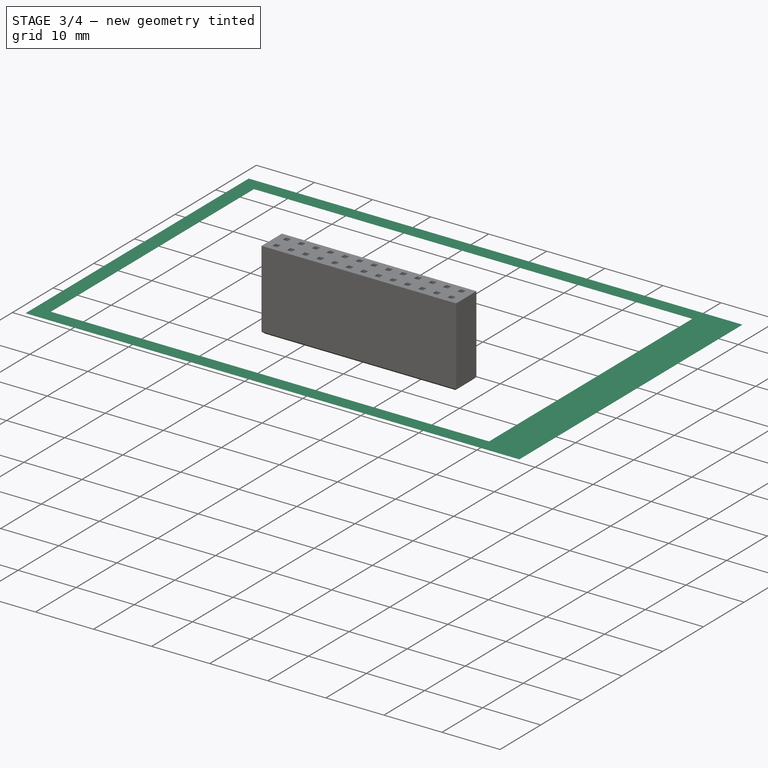
[diagram: stage 3 of 4 — iso view after this stage's code; geometry added in this stage tinted green]
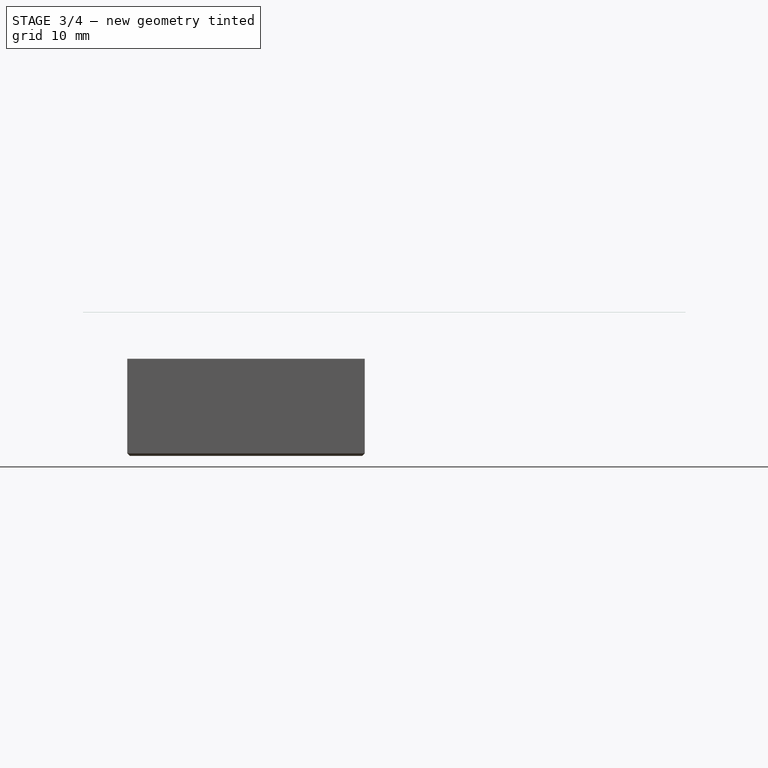
[diagram: stage 3 of 4 — front view after this stage's code; geometry added in this stage tinted green]
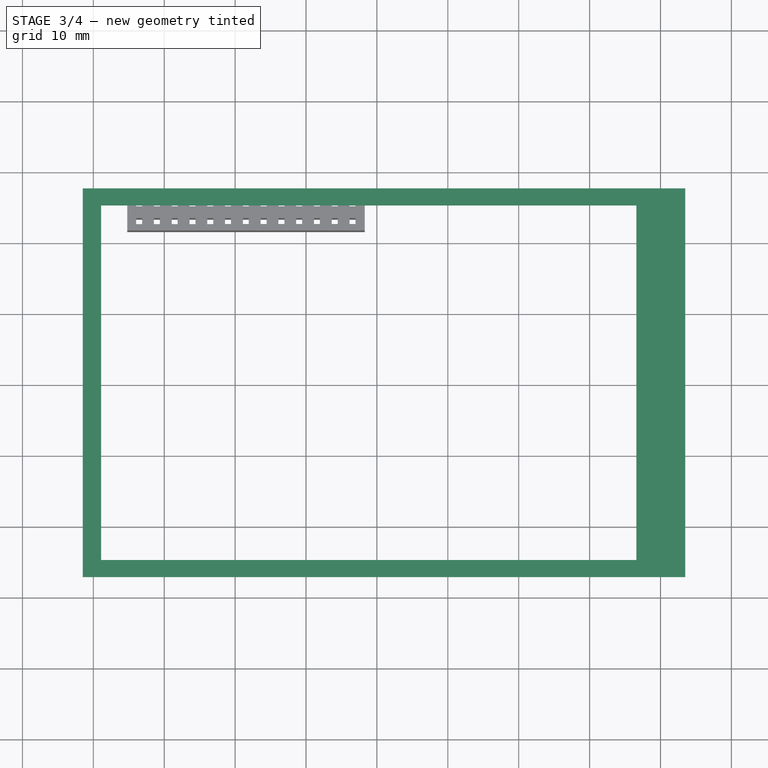
[diagram: stage 3 of 4 — top view after this stage's code; geometry added in this stage tinted green]
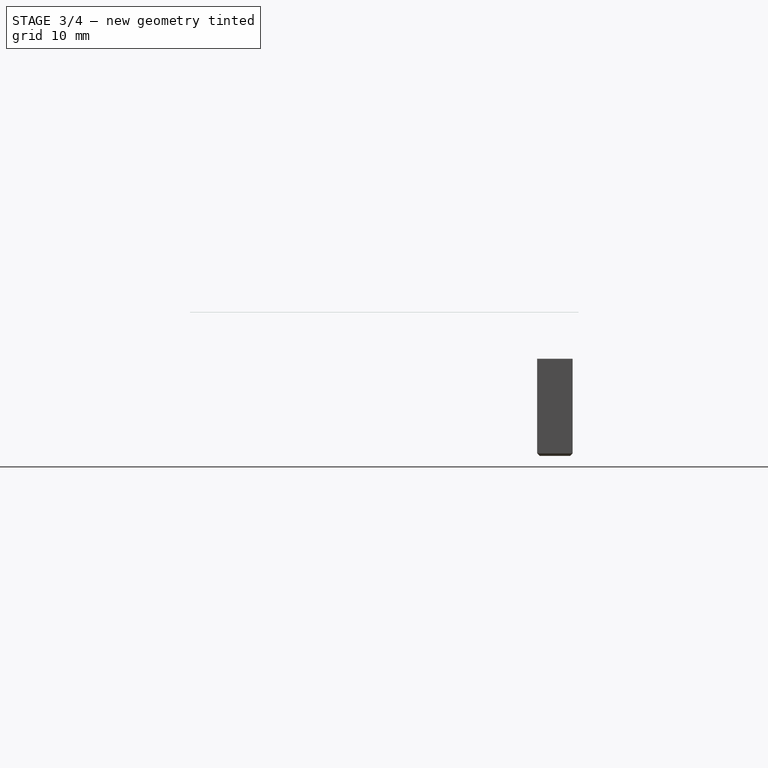
[diagram: stage 3 of 4 — right view after this stage's code; geometry added in this stage tinted green]
FEATURE [Sketcher::SketchObject] Sketch003
  ExternalGeometry = -> [Pad002]
  FullyConstrained = true
  MapMode = 5
  Placement = pos=(0,0,5.3) rot=(0,0,1;0rad)
  Support = -> [Pad002]
  sketch-geometry (16):
    g0: LineSegment StartX=-41.5 StartY=-28.425 StartZ=0 EndX=-38.5 EndY=-28.425 EndZ=0
    g1: LineSegment StartX=-38.5 StartY=-28.425 StartZ=0 EndX=-38.5 EndY=-27.425 EndZ=0
    g2: LineSegment StartX=-38.5 StartY=-27.425 StartZ=0 EndX=-41.5 EndY=-27.425 EndZ=0
    g3: LineSegment StartX=-41.5 StartY=-27.425 StartZ=0 EndX=-41.5 EndY=-28.425 EndZ=0
    g4: LineSegment StartX=11.1 StartY=-28.425 StartZ=0 EndX=14.1 EndY=-28.425 EndZ=0
    g5: LineSegment StartX=14.1 StartY=-28.425 StartZ=0 EndX=14.1 EndY=-27.425 EndZ=0
    g6: LineSegment StartX=14.1 StartY=-27.425 StartZ=0 EndX=11.1 EndY=-27.425 EndZ=0
    g7: LineSegment StartX=11.1 StartY=-27.425 StartZ=0 EndX=11.1 EndY=-28.425 EndZ=0
    g8: LineSegment StartX=38.5 StartY=27.425 StartZ=0 EndX=41.5 EndY=27.425 EndZ=0
    g9: LineSegment StartX=41.5 StartY=27.425 StartZ=0 EndX=41.5 EndY=28.425 EndZ=0
    g10: LineSegment StartX=41.5 StartY=28.425 StartZ=0 EndX=38.5 EndY=28.425 EndZ=0
    g11: LineSegment StartX=38.5 StartY=28.425 StartZ=0 EndX=38.5 EndY=27.425 EndZ=0
    g12: LineSegment StartX=-38.5 StartY=27.425 StartZ=0 EndX=-41.5 EndY=27.425 EndZ=0
    g13: LineSegment StartX=-41.5 StartY=27.425 StartZ=0 EndX=-41.5 EndY=28.425 EndZ=0
    g14: LineSegment StartX=-41.5 StartY=28.425 StartZ=0 EndX=-38.5 EndY=28.425 EndZ=0
    g15: LineSegment StartX=-38.5 StartY=28.425 StartZ=0 EndX=-38.5 EndY=27.425 EndZ=0
  constraints (40):
    c: Coincident(g0,g1)
    c: Coincident(g1,g2)
    c: Coincident(g2,g3)
    c: Coincident(g3,g0)
    c: Horizontal(g0)
    c: Horizontal(g2)
    c: Vertical(g1)
    c: Vertical(g3)
    c: Coincident(g0,g-9)
    c: Coincident(g1,g-10)
    c: Coincident(g4,g5)
    c: Coincident(g5,g6)
    c: Coincident(g6,g7)
    c: Coincident(g7,g4)
    c: Horizontal(g4)
    c: Horizontal(g6)
    c: Vertical(g5)
    c: Vertical(g7)
    c: Coincident(g4,g-7)
    c: Coincident(g5,g-8)
    c: Coincident(g8,g9)
    c: Coincident(g9,g10)
    c: Coincident(g10,g11)
    c: Coincident(g11,g8)
    c: Horizontal(g8)
    c: Horizontal(g10)
    c: Vertical(g9)
    c: Vertical(g11)
    c: Coincident(g8,g-6)
    c: Coincident(g9,g-5)
    c: Coincident(g12,g13)
    c: Coincident(g13,g14)
    c: Coincident(g14,g15)
    c: Coincident(g15,g12)
    c: Horizontal(g12)
    c: Horizontal(g14)
    c: Vertical(g13)
    c: Vertical(g15)
    c: Coincident(g12,g-4)
    c: Coincident(g13,g-3)
FEATURE [PartDesign::Pocket] Pocket
  BaseFeature = -> Pad002
  Direction = (0,0,-1)
  Length = 1.5
  Length2 = 100
  Placement = pos=(0,0,2.8) rot=(0,0,1;0rad)
  Profile = -> Sketch003
  ReferenceAxis = -> Sketch003 [N_Axis]
  Type = 0
FEATURE [PartDesign::Body] Body002  label="Plastic"
  Group = -> [DatumPlane,CopyPad001,Sketch002,Pad002,Sketch003,Pocket]
  Origin = -> Origin002
  Tip = -> Pocket
FEATURE [PartDesign::ShapeBinder] ShapeBinder001
  Placement = pos=(0,0,2.8) rot=(0,0,1;0rad)
  Support = -> [Pocket]
  TraceSupport = false
FEATURE [Sketcher::SketchObject] Sketch004
  ExternalGeometry = -> [ShapeBinder001]
  FullyConstrained = true
  MapMode = 5
  Placement = pos=(0,0,5.3) rot=(0,0,1;0rad)
  Support = -> [ShapeBinder001]
  sketch-geometry (4):
    g0: LineSegment StartX=43.5 StartY=-27.425 StartZ=0 EndX=-41.5 EndY=-27.425 EndZ=0
    g1: LineSegment StartX=-41.5 StartY=-27.425 StartZ=0 EndX=-41.5 EndY=27.425 EndZ=0
    g2: LineSegment StartX=-41.5 StartY=27.425 StartZ=0 EndX=43.5 EndY=27.425 EndZ=0
    g3: LineSegment StartX=43.5 StartY=27.425 StartZ=0 EndX=43.5 EndY=-27.425 EndZ=0
  constraints (11):
    c: Coincident(g0,g1)
    c: Coincident(g1,g2)
    c: Coincident(g2,g3)
    c: Coincident(g3,g0)
    c: Horizontal(g0)
    c: Horizontal(g2)
    c: Vertical(g1)
    c: Vertical(g3)
    c: PointOnObject(g0,g-4)
    c: Coincident(g1,g-5)
    c: DistanceX(g2,g2) = 85
FEATURE [PartDesign::Pad] Pad003
  Direction = (0,0,1)
  Length = 1.25
  Length2 = 100
  Placement = pos=(0,0,2.8) rot=(0,0,1;0rad)
  Profile = -> Sketch004
  ReferenceAxis = -> Sketch004 [N_Axis]
  Type = 0
FEATURE [PartDesign::Body] Body004  label="Resistor"
  Group = -> [ShapeBinder002,Sketch005,Pad004]
  Origin = -> Origin004
  Tip = -> Pad004
FEATURE [PartDesign::ShapeBinder] ShapeBinder003
  Placement = pos=(0,0,1.25) rot=(0,0,1;0rad)
  Support = -> [Pad003]
  TraceSupport = false
FEATURE [Sketcher::SketchObject] Sketch006
  ExternalGeometry = -> [ShapeBinder003]
  FullyConstrained = true
  MapMode = 5
  Placement = pos=(0,0,6.55) rot=(0,0,1;0rad)
  Support = -> [ShapeBinder003]
  sketch-geometry (9):
    g0: LineSegment StartX=-41.5 StartY=27.425 StartZ=0 EndX=43.5 EndY=27.425 EndZ=0
    g1: LineSegment StartX=43.5 StartY=27.425 StartZ=0 EndX=43.5 EndY=-27.425 EndZ=0
    g2: LineSegment StartX=43.5 StartY=-27.425 StartZ=0 EndX=-41.5 EndY=-27.425 EndZ=0
    g3: LineSegment StartX=-41.5 StartY=-27.425 StartZ=0 EndX=-41.5 EndY=27.425 EndZ=0
    g4: LineSegment StartX=36.6 StartY=-25 StartZ=0 EndX=36.6 EndY=25 EndZ=0
    g5: LineSegment StartX=36.6 StartY=25 StartZ=0 EndX=-38.9 EndY=25 EndZ=0
    g6: LineSegment StartX=-38.9 StartY=25 StartZ=0 EndX=-38.9 EndY=-25 EndZ=0
    g7: LineSegment StartX=-38.9 StartY=-25 StartZ=0 EndX=36.6 EndY=-25 EndZ=0
    g8: GeomPoint X=-1.15 Y=0 Z=0
  constraints (23):
    c: Coincident(g0,g1)
    c: Coincident(g1,g2)
    c: Coincident(g2,g3)
    c: Coincident(g3,g0)
    c: Horizontal(g0)
    c: Horizontal(g2)
    c: Vertical(g1)
    c: Vertical(g3)
    c: Coincident(g0,g-6)
    c: Coincident(g1,g-4)
    c: Coincident(g4,g5)
    c: Coincident(g5,g6)
    c: Coincident(g6,g7)
    c: Coincident(g7,g4)
    c: Horizontal(g5)
    c: Horizontal(g7)
    c: Vertical(g4)
    c: Vertical(g6)
    c: Symmetric(g5,g4,g8)
    c: PointOnObject(g8,g-1)
    c: DistanceX(g5,g5) = 75.5
    c: DistanceY(g4,g4) = 50
    c: DistanceX(g0,g5) = 2.6
FEATURE [PartDesign::Pad] Pad005
  Direction = (0,0,1)
  Length = 0.02
  Length2 = 100
  Placement = pos=(0,0,1.25) rot=(0,0,1;0rad)
  Profile = -> Sketch006
  ReferenceAxis = -> Sketch006 [N_Axis]
  Type = 0
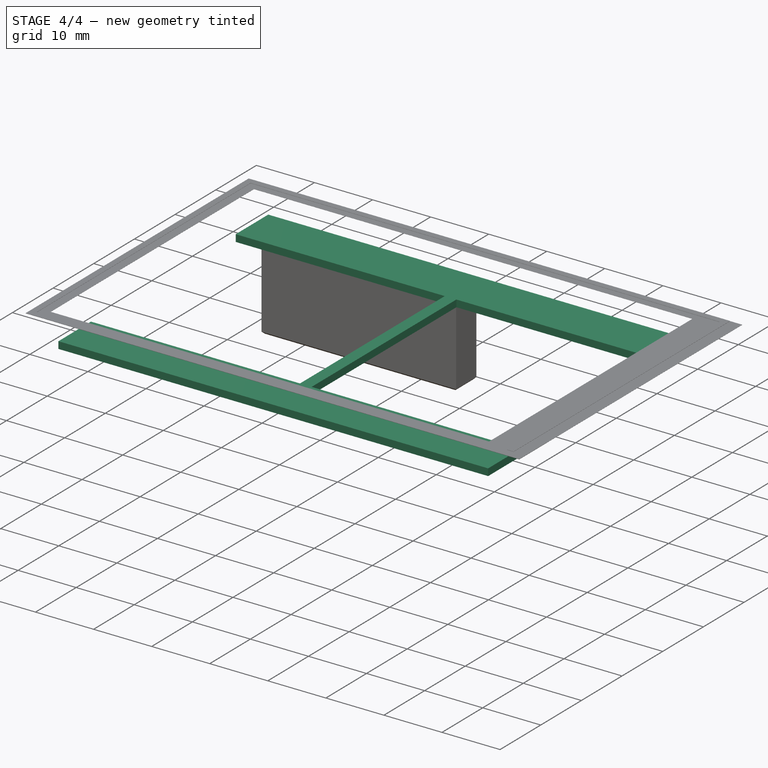
[diagram: stage 4 of 4 — iso view after this stage's code; geometry added in this stage tinted green]
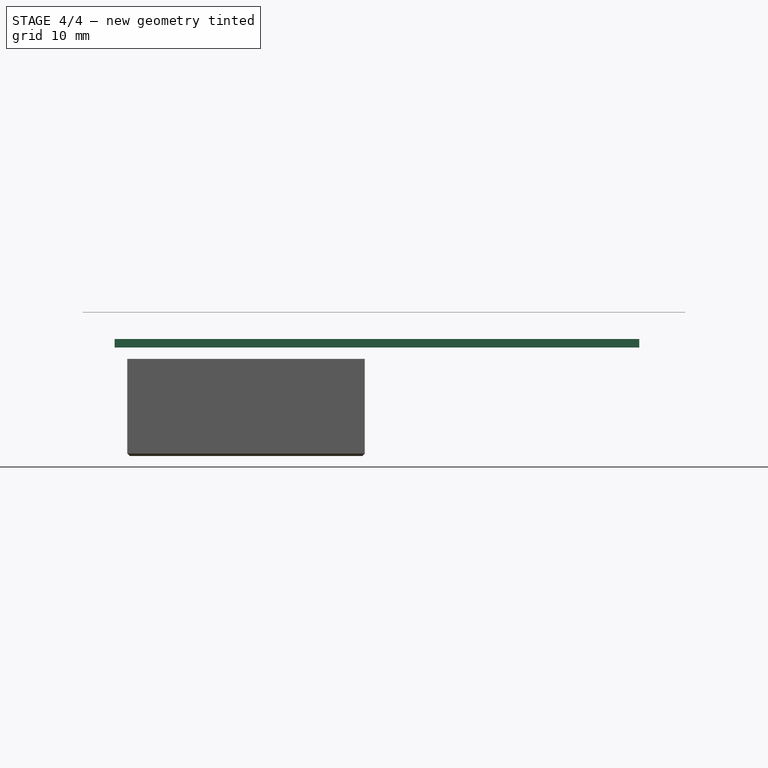
[diagram: stage 4 of 4 — front view after this stage's code; geometry added in this stage tinted green]
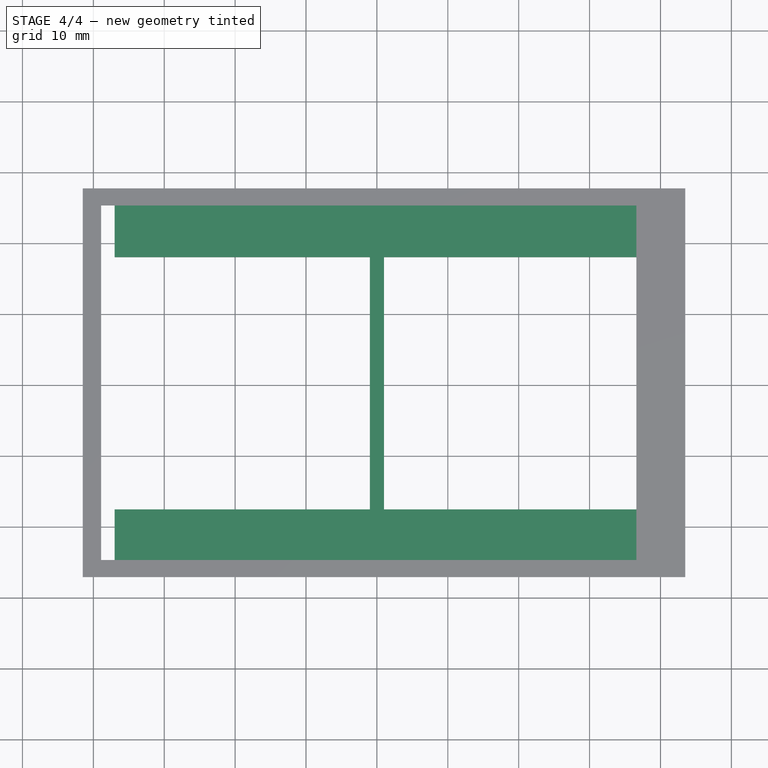
[diagram: stage 4 of 4 — top view after this stage's code; geometry added in this stage tinted green]
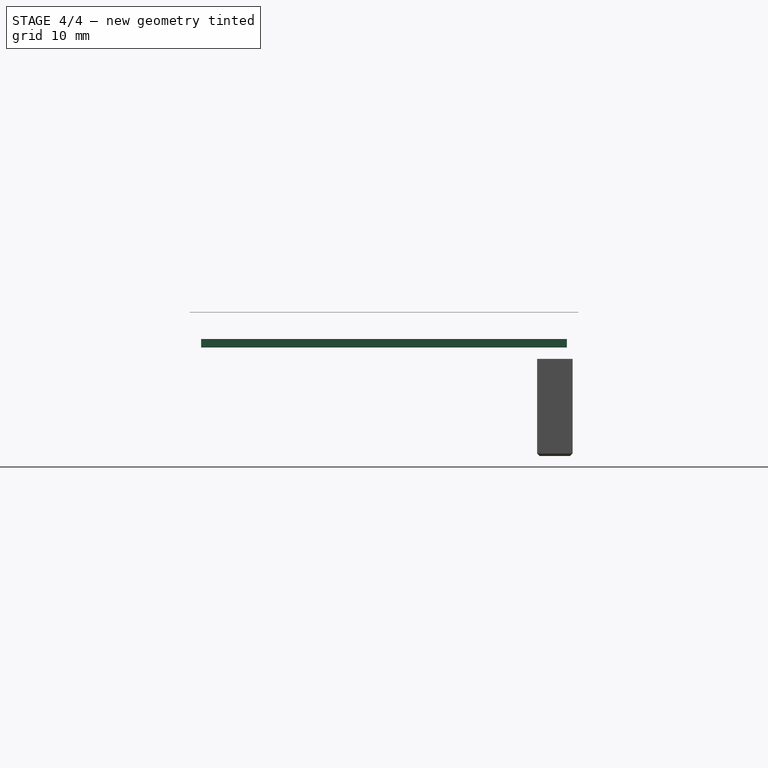
[diagram: stage 4 of 4 — right view after this stage's code; geometry added in this stage tinted green]
FEATURE [PartDesign::Body] Body  label="PCB"
  Group = -> [Sketch,Pad]
  Origin = -> Origin
  Tip = -> Pad
FEATURE [PartDesign::ShapeBinder] ShapeBinder
  Placement = pos=(0,0,1.6) rot=(0,0,1;0rad)
  Support = -> [Pad]
  TraceSupport = false
FEATURE [Sketcher::SketchObject] Sketch001
  ExternalGeometry = -> [ShapeBinder]
  FullyConstrained = true
  MapMode = 5
  Placement = pos=(0,0,1.6) rot=(0,0,1;0rad)
  Support = -> [ShapeBinder]
  sketch-geometry (14):
    g0: LineSegment StartX=-37 StartY=25.8 StartZ=0 EndX=-37 EndY=17.8 EndZ=0
    g1: LineSegment StartX=37 StartY=17.8 StartZ=0 EndX=37 EndY=25.8 EndZ=0
    g2: LineSegment StartX=37 StartY=25.8 StartZ=0 EndX=-37 EndY=25.8 EndZ=0
    g3: GeomPoint X=0 Y=21.8 Z=0
    g4: LineSegment StartX=-37 StartY=-17.8 StartZ=0 EndX=-37 EndY=-25.8 EndZ=0
    g5: LineSegment StartX=-37 StartY=-25.8 StartZ=0 EndX=37 EndY=-25.8 EndZ=0
    g6: LineSegment StartX=37 StartY=-25.8 StartZ=0 EndX=37 EndY=-17.8 EndZ=0
    g7: LineSegment StartX=37 StartY=-17.8 StartZ=0 EndX=1 EndY=-17.8 EndZ=0
    g8: GeomPoint X=0 Y=-21.8 Z=0
    g9: LineSegment StartX=1 StartY=17.8 StartZ=0 EndX=1 EndY=-17.8 EndZ=0
    g10: LineSegment StartX=-1 StartY=-17.8 StartZ=0 EndX=-1 EndY=17.8 EndZ=0
    g11: LineSegment StartX=-37 StartY=17.8 StartZ=0 EndX=-1 EndY=17.8 EndZ=0
    g12: LineSegment StartX=37 StartY=17.8 StartZ=0 EndX=1 EndY=17.8 EndZ=0
    g13: LineSegment StartX=-1 StartY=-17.8 StartZ=0 EndX=-37 EndY=-17.8 EndZ=0
  constraints (38):
    c: Coincident(g1,g2)
    c: Coincident(g2,g0)
    c: Horizontal(g2)
    c: Vertical(g0)
    c: Vertical(g1)
    c: Symmetric(g1,g0,g3)
    c: PointOnObject(g3,g-2)
    c: Coincident(g4,g5)
    c: Coincident(g5,g6)
    c: Coincident(g6,g7)
    c: Horizontal(g5)
    c: Horizontal(g7)
    c: Vertical(g4)
    c: Vertical(g6)
    c: Symmetric(g5,g4,g8)
    c: PointOnObject(g8,g-2)
    c: Equal(g6,g1)
    c: DistanceX(g2,g2) = 74
    c: DistanceY(g1,g1) = 8
    c: DistanceY(g8,g-1) = 21.8
    c: DistanceY(g-1,g3) = 21.8
    c: Vertical(g9)
    c: Vertical(g10)
    c: Coincident(g7,g9)
    c: Equal(g5,g2)
    c: Coincident(g11,g0)
    c: Coincident(g11,g10)
    c: Horizontal(g11)
    c: Coincident(g12,g1)
    c: Coincident(g12,g9)
    c: Horizontal(g12)
    c: Coincident(g13,g10)
    c: Coincident(g13,g4)
    c: Horizontal(g13)
    c: Horizontal(g10,g9)
    c: Horizontal(g7,g10)
    c: DistanceX(g-1,g9) = 1
    c: DistanceX(g10,g-1) = 1
FEATURE [PartDesign::Pad] Pad001
  Direction = (0,0,1)
  Length = 1.2
  Length2 = 100
  Placement = pos=(0,0,1.6) rot=(0,0,1;0rad)
  Profile = -> Sketch001
  ReferenceAxis = -> Sketch001 [N_Axis]
  Type = 0
FEATURE [PartDesign::Body] Body003  label="Crystal"
  Group = -> [ShapeBinder001,Sketch004,Pad003]
  Origin = -> Origin003
  Tip = -> Pad003
FEATURE [PartDesign::ShapeBinder] ShapeBinder002
  Placement = pos=(0,0,1.25) rot=(0,0,1;0rad)
  Support = -> [Pad003]
  TraceSupport = false
FEATURE [Sketcher::SketchObject] Sketch005
  ExternalGeometry = -> [ShapeBinder002]
  FullyConstrained = true
  MapMode = 5
  Placement = pos=(0,0,6.55) rot=(0,0,1;0rad)
  Support = -> [ShapeBinder002]
  sketch-geometry (16):
    g0: LineSegment StartX=41.4 StartY=-25.825 StartZ=0 EndX=40.3 EndY=-25.825 EndZ=0
    g1: LineSegment StartX=40.3 StartY=-25.825 StartZ=0 EndX=40.3 EndY=26.325 EndZ=0
    g2: LineSegment StartX=40.3 StartY=27.425 StartZ=0 EndX=41.4 EndY=27.425 EndZ=0
    g3: LineSegment StartX=41.4 StartY=27.425 StartZ=0 EndX=41.4 EndY=-25.825 EndZ=0
    g4: LineSegment StartX=40.3 StartY=27.425 StartZ=0 EndX=-41.5 EndY=27.425 EndZ=0
    g5: LineSegment StartX=-41.5 StartY=27.425 StartZ=0 EndX=-41.5 EndY=26.325 EndZ=0
    g6: LineSegment StartX=-40.4 StartY=26.325 StartZ=0 EndX=40.3 EndY=26.325 EndZ=0
    g7: LineSegment StartX=-40.4 StartY=26.325 StartZ=0 EndX=-40.4 EndY=-26.325 EndZ=0
    g8: LineSegment StartX=-40.4 StartY=-27.425 StartZ=0 EndX=-41.5 EndY=-27.425 EndZ=0
    g9: LineSegment StartX=-41.5 StartY=-27.425 StartZ=0 EndX=-41.5 EndY=26.325 EndZ=0
    g10: LineSegment StartX=-40.4 StartY=-27.425 StartZ=0 EndX=43.5 EndY=-27.425 EndZ=0
    g11: LineSegment StartX=43.5 StartY=-27.425 StartZ=0 EndX=43.5 EndY=-26.325 EndZ=0
    g12: LineSegment StartX=42.4 StartY=-26.325 StartZ=0 EndX=-40.4 EndY=-26.325 EndZ=0
    g13: LineSegment StartX=42.4 StartY=-26.325 StartZ=0 EndX=42.4 EndY=-20.425 EndZ=0
    g14: LineSegment StartX=42.4 StartY=-20.425 StartZ=0 EndX=43.5 EndY=-20.425 EndZ=0
    g15: LineSegment StartX=43.5 StartY=-20.425 StartZ=0 EndX=43.5 EndY=-26.325 EndZ=0
  constraints (48):
    c: Coincident(g0,g1)
    c: Coincident(g2,g3)
    c: Coincident(g3,g0)
    c: Horizontal(g0)
    c: Horizontal(g2)
    c: Vertical(g1)
    c: Vertical(g3)
    c: PointOnObject(g2,g-3)
    c: Coincident(g4,g5)
    c: Horizontal(g4)
    c: Horizontal(g6)
    c: Vertical(g5)
    c: Coincident(g4,g2)
    c: PointOnObject(g5,g-5)
    c: Coincident(g8,g9)
    c: Horizontal(g8)
    c: Vertical(g7)
    c: Vertical(g9)
    c: PointOnObject(g8,g-6)
    c: Coincident(g10,g11)
    c: Horizontal(g10)
    c: Horizontal(g12)
    c: Vertical(g11)
    c: Coincident(g10,g8)
    c: PointOnObject(g11,g-4)
    c: DistanceX(g2,g2) = 1.1
    c: DistanceX(g4,g6) = 1.1
    c: Coincident(g7,g6)
    c: DistanceY(g5,g4) = 1.1
    c: Coincident(g5,g9)
    c: Horizontal(g6,g5)
    c: Vertical(g1,g2)
    c: Vertical(g8,g12)
    c: DistanceY(g8,g7) = 1.1
    c: Coincident(g12,g7)
    c: Coincident(g1,g6)
    c: DistanceY(g11,g0) = 0.5
    c: Coincident(g13,g14)
    c: Coincident(g14,g15)
    c: Horizontal(g14)
    c: Vertical(g13)
    c: Vertical(g15)
    c: Equal(g14,g2)
    c: DistanceY(g10,g14) = 7
    c: DistanceX(g0,g12) = 1
    c: Coincident(g13,g12)
    c: Coincident(g11,g15)
    c: Horizontal(g11,g12)
FEATURE [PartDesign::Pad] Pad004
  Direction = (0,0,1)
  Length = 0.05
  Length2 = 100
  Placement = pos=(0,0,1.25) rot=(0,0,1;0rad)
  Profile = -> Sketch005
  ReferenceAxis = -> Sketch005 [N_Axis]
  Type = 0
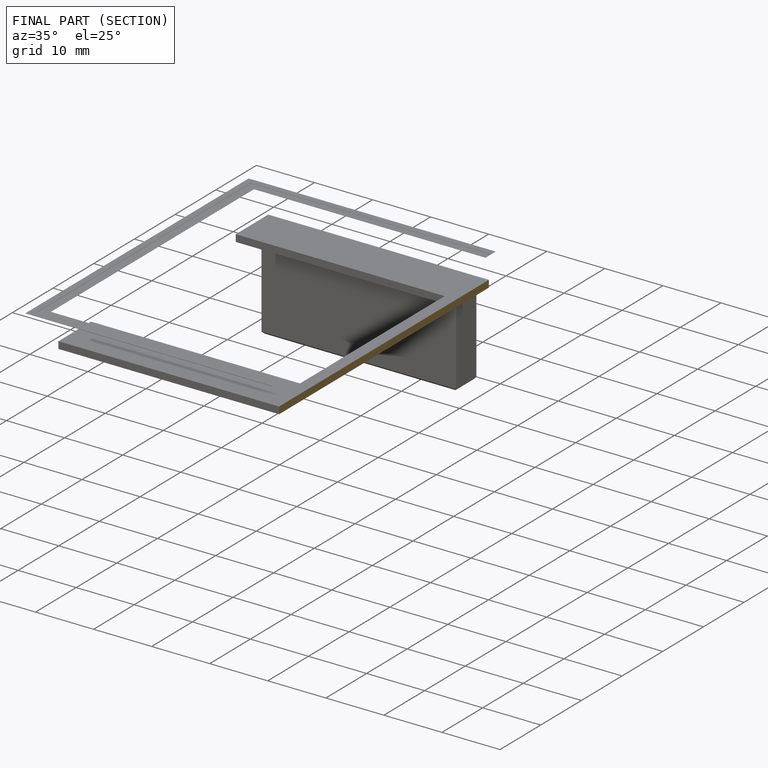
[diagram: finished part — half-section view (interior)]
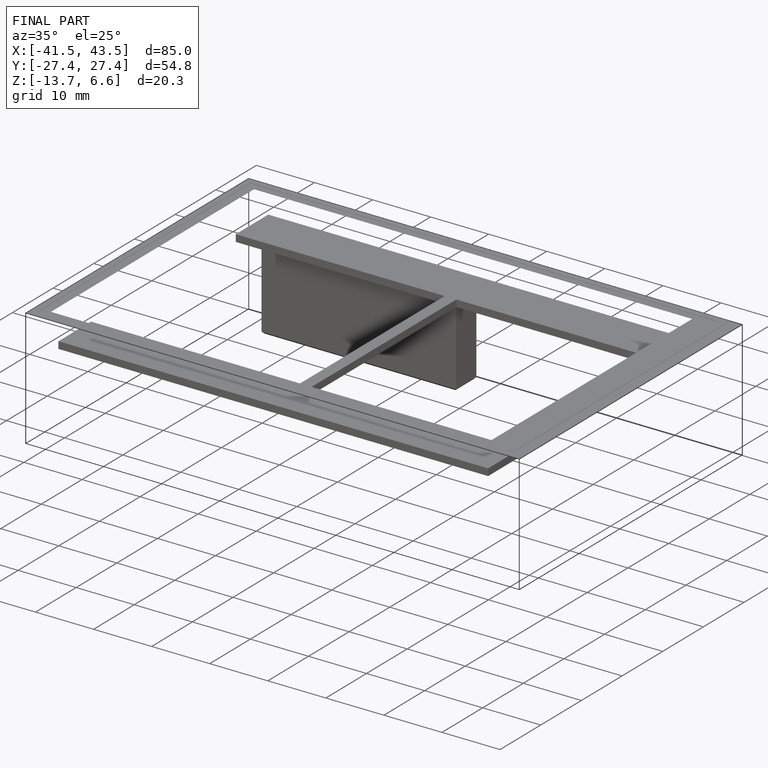
[diagram: finished part — iso view with bounding-box wireframe]
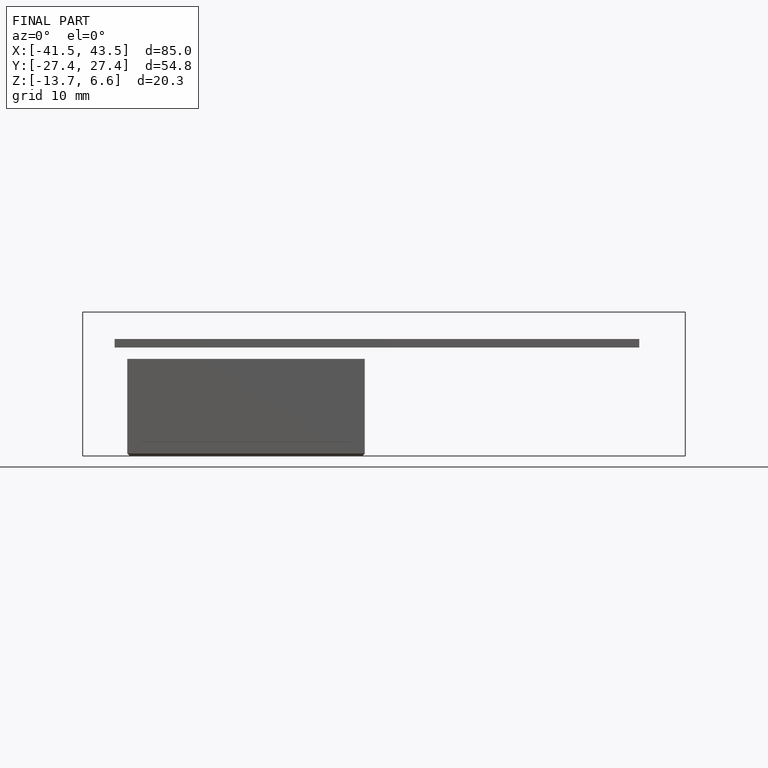
[diagram: finished part — front view with bounding-box wireframe]
